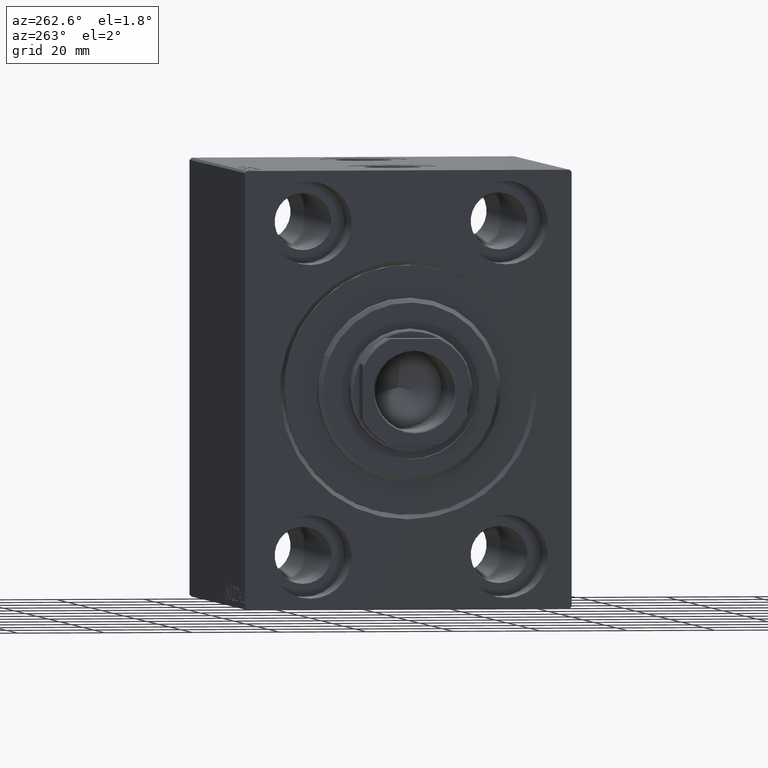
[diagram: clean part render]
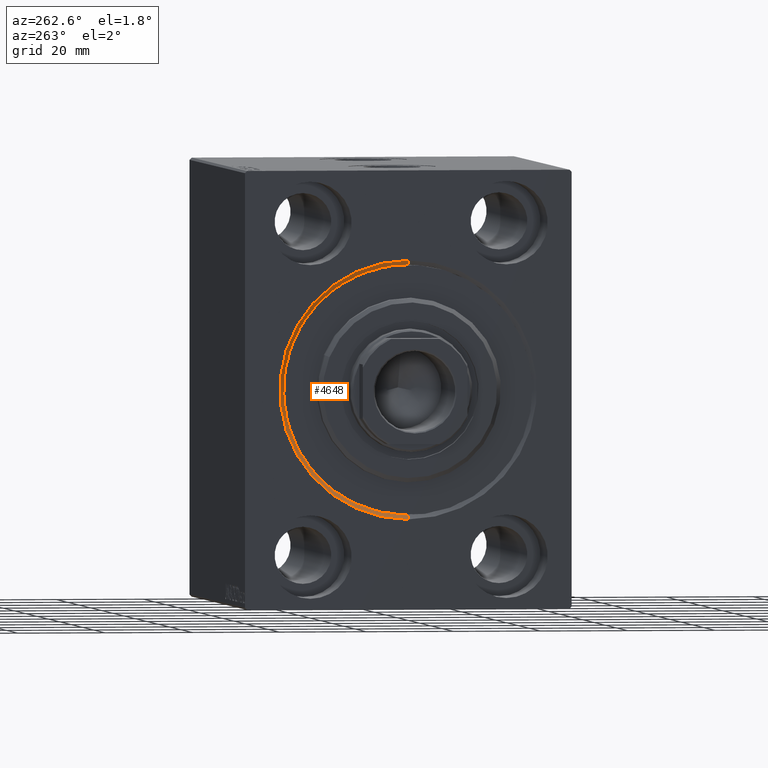
[diagram: same view with one face highlighted and labeled with its STEP entity id]
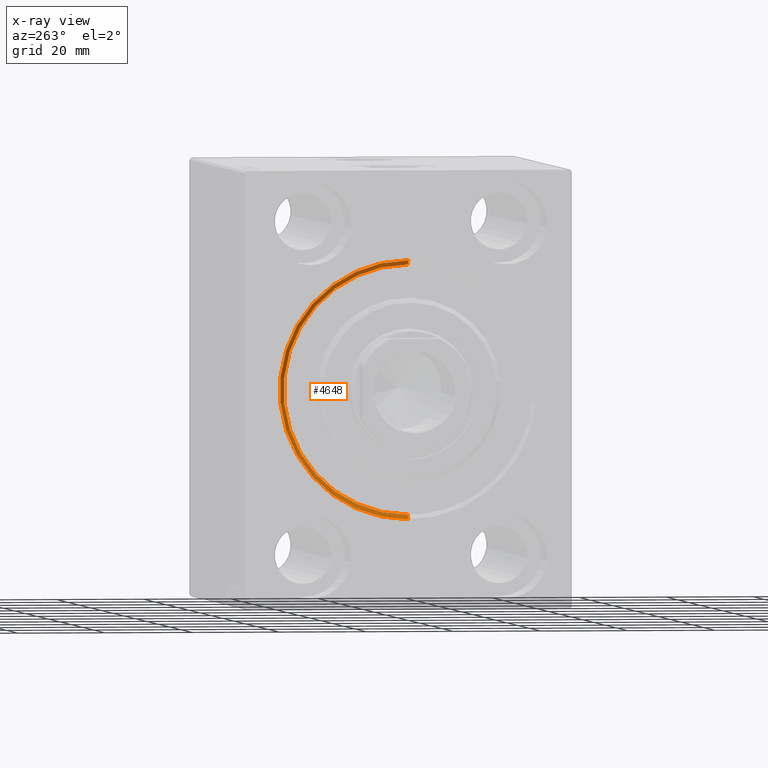
[diagram: x-ray of the same camera — body ghosted, the highlighted face saturated]
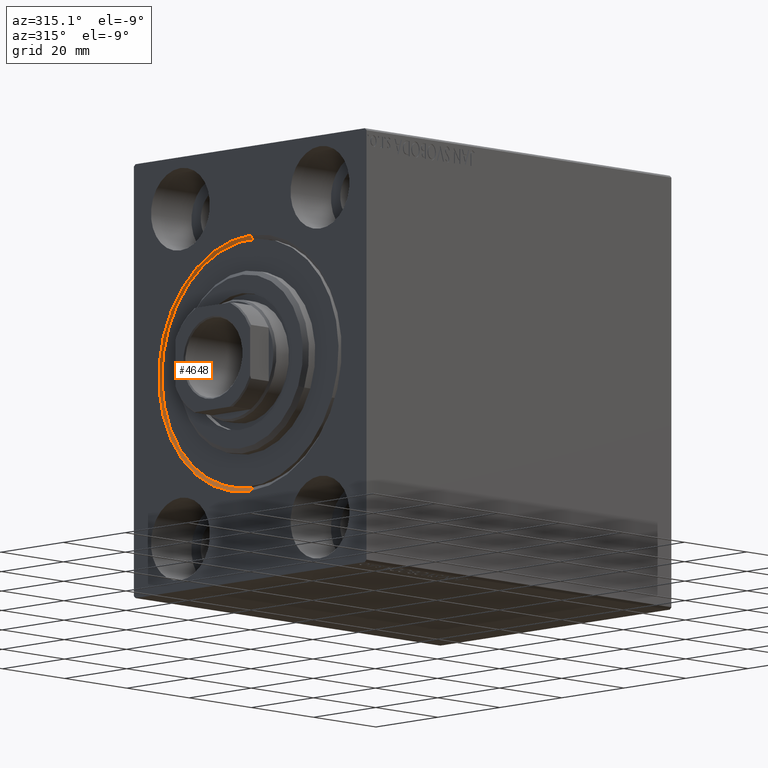
[diagram: same view with one face highlighted and labeled with its STEP entity id]
A machine part, auxiliary view. The second image highlights one B-rep face of the part: STEP entity #4648.
The next image is the same camera in x-ray: the body ghosted, the highlighted face saturated — about 0% of this face is hidden behind the body in this view.
A second angle (auxiliary view) of the same face is appended — the face is thin or edge-on in the first view.
In plain terms, the highlighted conical surface has half-angle 45 deg.
Its self-contained STEP definition (entity closure, byte-faithful):
#1137 = DIRECTION ( 'NONE',  ( 0.000000000000000000, 0.000000000000000000, -1.000000000000000000 ) ) ;
#3209 = CARTESIAN_POINT ( 'NONE',  ( 0.000000000000000000, 0.000000000000000000, 29.50000000000001421 ) ) ;
#3536 = FACE_OUTER_BOUND ( 'NONE', #10737, .T. ) ;
#4044 = DIRECTION ( 'NONE',  ( -1.000000000000000000, 0.000000000000000000, 0.000000000000000000 ) ) ;
#4648 = ADVANCED_FACE ( 'NONE', ( #3536 ), #33972, .F. ) ;
#5040 = ORIENTED_EDGE ( 'NONE', *, *, #7238, .F. ) ;
#5957 = EDGE_CURVE ( 'NONE', #5958, #38975, #38903, .T. ) ;
#5958 = VERTEX_POINT ( 'NONE', #35554 ) ;
#7002 = CIRCLE ( 'NONE', #36192, 29.50000000000001421 ) ;
#7238 = EDGE_CURVE ( 'NONE', #26642, #5958, #34043, .T. ) ;
#8290 = EDGE_CURVE ( 'NONE', #38975, #14098, #7002, .T. ) ;
#8969 = ORIENTED_EDGE ( 'NONE', *, *, #32643, .T. ) ;
#9115 = AXIS2_PLACEMENT_3D ( 'NONE', #21209, #4044, #1137 ) ;
#9794 = VECTOR ( 'NONE', #31576, 1000.000000000000000 ) ;
#10518 = LINE ( 'NONE', #23705, #18331 ) ;
#10737 = EDGE_LOOP ( 'NONE', ( #12531, #5040, #8969, #27732 ) ) ;
#11182 = AXIS2_PLACEMENT_3D ( 'NONE', #23391, #16911, #37865 ) ;
#12531 = ORIENTED_EDGE ( 'NONE', *, *, #5957, .F. ) ;
#14098 = VERTEX_POINT ( 'NONE', #3209 ) ;
#16911 = DIRECTION ( 'NONE',  ( -1.000000000000000000, 0.000000000000000000, 0.000000000000000000 ) ) ;
#18331 = VECTOR ( 'NONE', #20564, 1000.000000000000000 ) ;
#20564 = DIRECTION ( 'NONE',  ( -0.7071067811865487940, 0.000000000000000000, 0.7071067811865463515 ) ) ;
#20950 = DIRECTION ( 'NONE',  ( 1.000000000000000000, 0.000000000000000000, 0.000000000000000000 ) ) ;
#21209 = CARTESIAN_POINT ( 'NONE',  ( 1.000000000000018208, 0.000000000000000000, 0.000000000000000000 ) ) ;
#21961 = CARTESIAN_POINT ( 'NONE',  ( 1.000000000000018208, 3.490243377569956456E-15, -28.50000000000000000 ) ) ;
#23391 = CARTESIAN_POINT ( 'NONE',  ( 1.000000000000018208, 0.000000000000000000, 0.000000000000000000 ) ) ;
#23705 = CARTESIAN_POINT ( 'NONE',  ( 1.000000000000018208, 0.000000000000000000, 28.50000000000000000 ) ) ;
#23854 = CARTESIAN_POINT ( 'NONE',  ( 1.000000000000018208, 0.000000000000000000, 28.50000000000000000 ) ) ;
#24203 = CARTESIAN_POINT ( 'NONE',  ( 0.000000000000000000, 3.612708057484693970E-15, -29.50000000000001421 ) ) ;
#26642 = VERTEX_POINT ( 'NONE', #23854 ) ;
#27415 = CARTESIAN_POINT ( 'NONE',  ( 0.000000000000000000, 0.000000000000000000, 0.000000000000000000 ) ) ;
#27732 = ORIENTED_EDGE ( 'NONE', *, *, #8290, .F. ) ;
#31576 = DIRECTION ( 'NONE',  ( -0.7071067811865487940, 8.659560562354919300E-17, -0.7071067811865463515 ) ) ;
#32643 = EDGE_CURVE ( 'NONE', #26642, #14098, #10518, .T. ) ;
#33972 = CONICAL_SURFACE ( 'NONE', #11182, 28.50000000000000000, 0.7853981633974466137 ) ;
#34043 = CIRCLE ( 'NONE', #9115, 28.50000000000000000 ) ;
#35554 = CARTESIAN_POINT ( 'NONE',  ( 1.000000000000018208, 3.490243377569956456E-15, -28.50000000000000000 ) ) ;
#36192 = AXIS2_PLACEMENT_3D ( 'NONE', #27415, #20950, #41884 ) ;
#37865 = DIRECTION ( 'NONE',  ( 0.000000000000000000, 0.000000000000000000, 1.000000000000000000 ) ) ;
#38903 = LINE ( 'NONE', #21961, #9794 ) ;
#38975 = VERTEX_POINT ( 'NONE', #24203 ) ;
#41884 = DIRECTION ( 'NONE',  ( 0.000000000000000000, 0.000000000000000000, -1.000000000000000000 ) ) ;